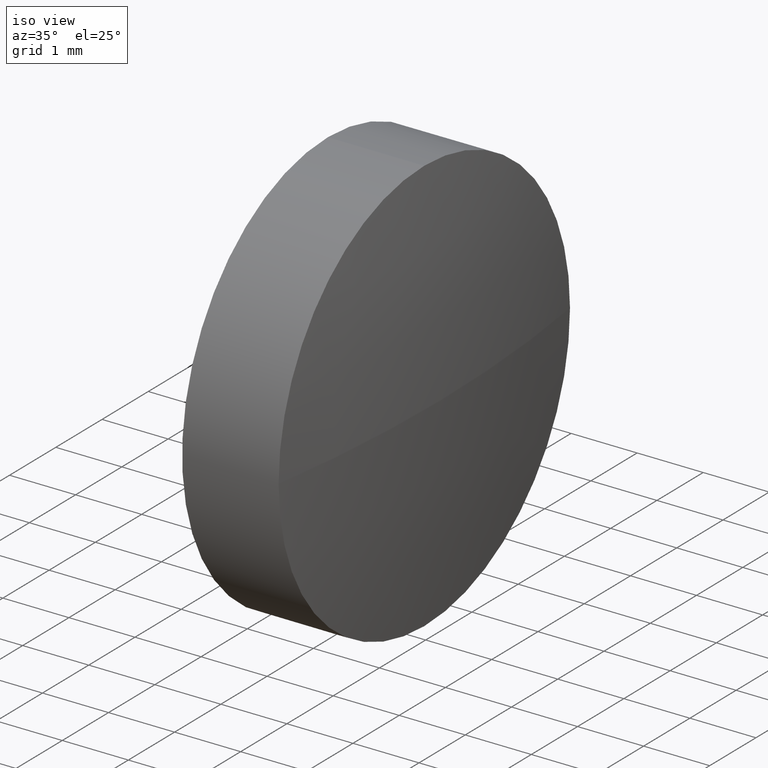
[diagram: clean part render]
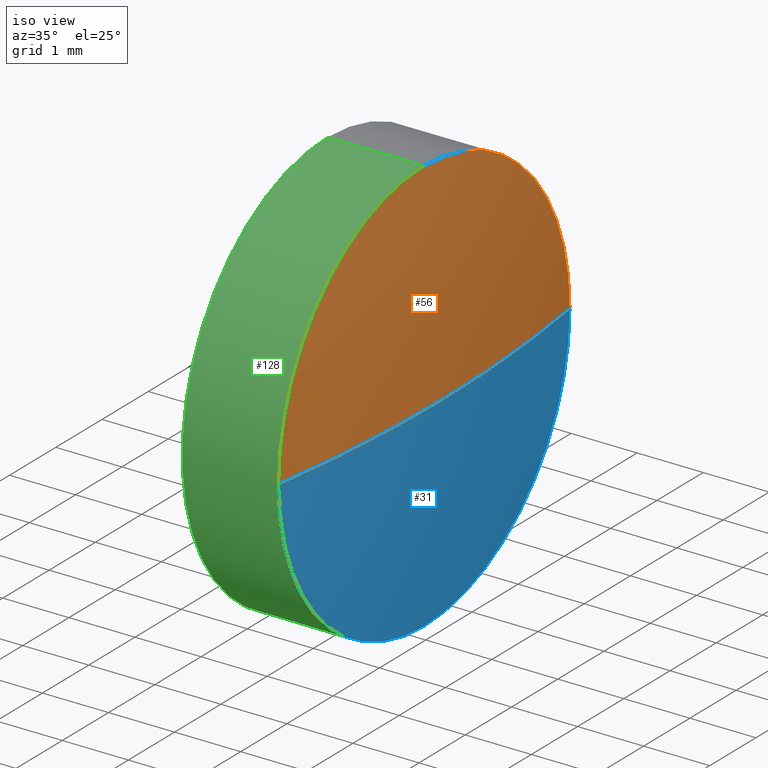
[diagram: same view with three faces highlighted in distinct colors, each labeled with its STEP entity id]
A machine part, iso view with three faces highlighted in distinct colors.
Their STEP definitions:

[orange] entity #56 — the highlighted spherical surface has radius 20.7919 mm.
#1 = DIRECTION ( 'NONE',  ( 0.0000000000000000000, 1.224646799147353200E-016, -1.000000000000000000 ) ) ;
#12 = FACE_OUTER_BOUND ( 'NONE', #65, .T. ) ;
#24 = ORIENTED_EDGE ( 'NONE', *, *, #90, .T. ) ;
#28 = DIRECTION ( 'NONE',  ( -1.000000000000000000, -0.0000000000000000000, -0.0000000000000000000 ) ) ;
#34 = VERTEX_POINT ( 'NONE', #163 ) ;
#36 = CARTESIAN_POINT ( 'NONE',  ( 439.9211293306011600, 24.08364198256748500, 3.149999999999999900 ) ) ;
#38 = ORIENTED_EDGE ( 'NONE', *, *, #41, .F. ) ;
#39 = ORIENTED_EDGE ( 'NONE', *, *, #94, .F. ) ;
#41 = EDGE_CURVE ( 'NONE', #34, #181, #81, .T. ) ;
#44 = EDGE_CURVE ( 'NONE', #132, #155, #122, .T. ) ;
#46 = DIRECTION ( 'NONE',  ( 0.0000000000000000000, 0.0000000000000000000, 1.000000000000000000 ) ) ;
#47 = CARTESIAN_POINT ( 'NONE',  ( 419.3692543306010500, 24.08364198256733200, 0.0000000000000000000 ) ) ;
#48 = ORIENTED_EDGE ( 'NONE', *, *, #44, .F. ) ;
#50 = SPHERICAL_SURFACE ( 'NONE', #126, 20.79187500000012500 ) ;
#56 = ADVANCED_FACE ( 'NONE', ( #12 ), #50, .T. ) ;
#65 = EDGE_LOOP ( 'NONE', ( #38, #24, #48, #39 ) ) ;
#74 = DIRECTION ( 'NONE',  ( -0.0000000000000000000, 0.0000000000000000000, 1.000000000000000000 ) ) ;
#75 = CARTESIAN_POINT ( 'NONE',  ( 439.9211293306011600, 24.08364198256748500, 0.0000000000000000000 ) ) ;
#80 = CARTESIAN_POINT ( 'NONE',  ( 419.3692543306010500, 24.08364198256733200, 0.0000000000000000000 ) ) ;
#81 = CIRCLE ( 'NONE', #169, 20.79187500000012900 ) ;
#90 = EDGE_CURVE ( 'NONE', #34, #155, #110, .T. ) ;
#92 = CIRCLE ( 'NONE', #146, 3.149999999999999900 ) ;
#94 = EDGE_CURVE ( 'NONE', #181, #132, #92, .T. ) ;
#98 = DIRECTION ( 'NONE',  ( 0.0000000000000000000, 1.000000000000000000, 1.224646799147353000E-016 ) ) ;
#99 = DIRECTION ( 'NONE',  ( -1.000000000000000000, -0.0000000000000000000, -0.0000000000000000000 ) ) ;
#106 = DIRECTION ( 'NONE',  ( 0.0000000000000000000, 0.0000000000000000000, 1.000000000000000000 ) ) ;
#107 = DIRECTION ( 'NONE',  ( 1.000000000000000000, 0.0000000000000000000, 0.0000000000000000000 ) ) ;
#110 = CIRCLE ( 'NONE', #112, 20.79187500000012500 ) ;
#112 = AXIS2_PLACEMENT_3D ( 'NONE', #47, #74, #107 ) ;
#117 = DIRECTION ( 'NONE',  ( -0.0000000000000000000, 0.0000000000000000000, -1.000000000000000000 ) ) ;
#118 = CARTESIAN_POINT ( 'NONE',  ( 419.3692543306010500, 24.08364198256733200, 0.0000000000000000000 ) ) ;
#122 = CIRCLE ( 'NONE', #184, 3.149999999999999900 ) ;
#123 = CARTESIAN_POINT ( 'NONE',  ( 439.9211293306011600, 20.93364198256734500, -3.857637417314148900E-016 ) ) ;
#126 = AXIS2_PLACEMENT_3D ( 'NONE', #80, #117, #148 ) ;
#132 = VERTEX_POINT ( 'NONE', #36 ) ;
#136 = CARTESIAN_POINT ( 'NONE',  ( 439.9211293306011600, 27.23364198256747300, 0.0000000000000000000 ) ) ;
#146 = AXIS2_PLACEMENT_3D ( 'NONE', #75, #28, #106 ) ;
#148 = DIRECTION ( 'NONE',  ( 0.0000000000000000000, 1.000000000000000000, 0.0000000000000000000 ) ) ;
#155 = VERTEX_POINT ( 'NONE', #136 ) ;
#160 = CARTESIAN_POINT ( 'NONE',  ( 439.9211293306011600, 24.08364198256748500, 0.0000000000000000000 ) ) ;
#163 = CARTESIAN_POINT ( 'NONE',  ( 440.1611293306011700, 24.08364198256733200, 0.0000000000000000000 ) ) ;
#169 = AXIS2_PLACEMENT_3D ( 'NONE', #118, #1, #98 ) ;
#181 = VERTEX_POINT ( 'NONE', #123 ) ;
#184 = AXIS2_PLACEMENT_3D ( 'NONE', #160, #99, #46 ) ;

[blue] entity #31 — the highlighted spherical surface has radius 20.7919 mm.
#1 = DIRECTION ( 'NONE',  ( 0.0000000000000000000, 1.224646799147353200E-016, -1.000000000000000000 ) ) ;
#6 = DIRECTION ( 'NONE',  ( -0.0000000000000000000, 0.0000000000000000000, -1.000000000000000000 ) ) ;
#8 = CARTESIAN_POINT ( 'NONE',  ( 439.9211293306011600, 24.08364198256748500, 0.0000000000000000000 ) ) ;
#10 = DIRECTION ( 'NONE',  ( -1.000000000000000000, -0.0000000000000000000, -0.0000000000000000000 ) ) ;
#13 = AXIS2_PLACEMENT_3D ( 'NONE', #8, #49, #176 ) ;
#15 = CIRCLE ( 'NONE', #97, 3.149999999999999900 ) ;
#31 = ADVANCED_FACE ( 'NONE', ( #185 ), #159, .T. ) ;
#34 = VERTEX_POINT ( 'NONE', #163 ) ;
#41 = EDGE_CURVE ( 'NONE', #34, #181, #81, .T. ) ;
#45 = CARTESIAN_POINT ( 'NONE',  ( 419.3692543306010500, 24.08364198256733200, 0.0000000000000000000 ) ) ;
#47 = CARTESIAN_POINT ( 'NONE',  ( 419.3692543306010500, 24.08364198256733200, 0.0000000000000000000 ) ) ;
#49 = DIRECTION ( 'NONE',  ( -1.000000000000000000, -0.0000000000000000000, -0.0000000000000000000 ) ) ;
#69 = ORIENTED_EDGE ( 'NONE', *, *, #41, .T. ) ;
#71 = CIRCLE ( 'NONE', #13, 3.149999999999999900 ) ;
#73 = VERTEX_POINT ( 'NONE', #103 ) ;
#74 = DIRECTION ( 'NONE',  ( -0.0000000000000000000, 0.0000000000000000000, 1.000000000000000000 ) ) ;
#81 = CIRCLE ( 'NONE', #169, 20.79187500000012900 ) ;
#83 = EDGE_LOOP ( 'NONE', ( #186, #69, #153, #100 ) ) ;
#84 = EDGE_CURVE ( 'NONE', #73, #181, #15, .T. ) ;
#90 = EDGE_CURVE ( 'NONE', #34, #155, #110, .T. ) ;
#97 = AXIS2_PLACEMENT_3D ( 'NONE', #167, #10, #168 ) ;
#98 = DIRECTION ( 'NONE',  ( 0.0000000000000000000, 1.000000000000000000, 1.224646799147353000E-016 ) ) ;
#100 = ORIENTED_EDGE ( 'NONE', *, *, #140, .F. ) ;
#102 = DIRECTION ( 'NONE',  ( 0.0000000000000000000, 1.000000000000000000, 0.0000000000000000000 ) ) ;
#103 = CARTESIAN_POINT ( 'NONE',  ( 439.9211293306011600, 24.08364198256748500, -3.149999999999999900 ) ) ;
#107 = DIRECTION ( 'NONE',  ( 1.000000000000000000, 0.0000000000000000000, 0.0000000000000000000 ) ) ;
#110 = CIRCLE ( 'NONE', #112, 20.79187500000012500 ) ;
#112 = AXIS2_PLACEMENT_3D ( 'NONE', #47, #74, #107 ) ;
#118 = CARTESIAN_POINT ( 'NONE',  ( 419.3692543306010500, 24.08364198256733200, 0.0000000000000000000 ) ) ;
#123 = CARTESIAN_POINT ( 'NONE',  ( 439.9211293306011600, 20.93364198256734500, -3.857637417314148900E-016 ) ) ;
#136 = CARTESIAN_POINT ( 'NONE',  ( 439.9211293306011600, 27.23364198256747300, 0.0000000000000000000 ) ) ;
#140 = EDGE_CURVE ( 'NONE', #155, #73, #71, .T. ) ;
#153 = ORIENTED_EDGE ( 'NONE', *, *, #84, .F. ) ;
#155 = VERTEX_POINT ( 'NONE', #136 ) ;
#158 = AXIS2_PLACEMENT_3D ( 'NONE', #45, #6, #102 ) ;
#159 = SPHERICAL_SURFACE ( 'NONE', #158, 20.79187500000012500 ) ;
#163 = CARTESIAN_POINT ( 'NONE',  ( 440.1611293306011700, 24.08364198256733200, 0.0000000000000000000 ) ) ;
#167 = CARTESIAN_POINT ( 'NONE',  ( 439.9211293306011600, 24.08364198256748500, 0.0000000000000000000 ) ) ;
#168 = DIRECTION ( 'NONE',  ( 0.0000000000000000000, 0.0000000000000000000, 1.000000000000000000 ) ) ;
#169 = AXIS2_PLACEMENT_3D ( 'NONE', #118, #1, #98 ) ;
#176 = DIRECTION ( 'NONE',  ( 0.0000000000000000000, 0.0000000000000000000, 1.000000000000000000 ) ) ;
#181 = VERTEX_POINT ( 'NONE', #123 ) ;
#185 = FACE_OUTER_BOUND ( 'NONE', #83, .T. ) ;
#186 = ORIENTED_EDGE ( 'NONE', *, *, #90, .F. ) ;

[green] entity #128 — the highlighted cylindrical surface (partial cylindrical patch) has radius 3.15 mm, axis along (-1, -0, -0).
#10 = DIRECTION ( 'NONE',  ( -1.000000000000000000, -0.0000000000000000000, -0.0000000000000000000 ) ) ;
#11 = AXIS2_PLACEMENT_3D ( 'NONE', #87, #109, #35 ) ;
#15 = CIRCLE ( 'NONE', #97, 3.149999999999999900 ) ;
#18 = VERTEX_POINT ( 'NONE', #60 ) ;
#20 = ORIENTED_EDGE ( 'NONE', *, *, #94, .T. ) ;
#22 = CYLINDRICAL_SURFACE ( 'NONE', #23, 3.149999999999999900 ) ;
#23 = AXIS2_PLACEMENT_3D ( 'NONE', #166, #119, #137 ) ;
#25 = FACE_OUTER_BOUND ( 'NONE', #147, .T. ) ;
#27 = CARTESIAN_POINT ( 'NONE',  ( 437.6554189180591800, 24.08364198256748500, 3.149999999999999900 ) ) ;
#28 = DIRECTION ( 'NONE',  ( -1.000000000000000000, -0.0000000000000000000, -0.0000000000000000000 ) ) ;
#35 = DIRECTION ( 'NONE',  ( 0.0000000000000000000, 0.0000000000000000000, 1.000000000000000000 ) ) ;
#36 = CARTESIAN_POINT ( 'NONE',  ( 439.9211293306011600, 24.08364198256748500, 3.149999999999999900 ) ) ;
#57 = VECTOR ( 'NONE', #180, 1000.000000000000000 ) ;
#60 = CARTESIAN_POINT ( 'NONE',  ( 438.4611293306011200, 24.08364198256748500, -3.149999999999999900 ) ) ;
#62 = CARTESIAN_POINT ( 'NONE',  ( 437.6554189180591800, 24.08364198256748500, -3.149999999999999900 ) ) ;
#70 = CIRCLE ( 'NONE', #11, 3.149999999999999900 ) ;
#73 = VERTEX_POINT ( 'NONE', #103 ) ;
#75 = CARTESIAN_POINT ( 'NONE',  ( 439.9211293306011600, 24.08364198256748500, 0.0000000000000000000 ) ) ;
#79 = ORIENTED_EDGE ( 'NONE', *, *, #143, .F. ) ;
#84 = EDGE_CURVE ( 'NONE', #73, #181, #15, .T. ) ;
#85 = DIRECTION ( 'NONE',  ( -1.000000000000000000, -0.0000000000000000000, -0.0000000000000000000 ) ) ;
#87 = CARTESIAN_POINT ( 'NONE',  ( 438.4611293306011200, 24.08364198256748500, 0.0000000000000000000 ) ) ;
#92 = CIRCLE ( 'NONE', #146, 3.149999999999999900 ) ;
#94 = EDGE_CURVE ( 'NONE', #181, #132, #92, .T. ) ;
#96 = LINE ( 'NONE', #62, #57 ) ;
#97 = AXIS2_PLACEMENT_3D ( 'NONE', #167, #10, #168 ) ;
#103 = CARTESIAN_POINT ( 'NONE',  ( 439.9211293306011600, 24.08364198256748500, -3.149999999999999900 ) ) ;
#106 = DIRECTION ( 'NONE',  ( 0.0000000000000000000, 0.0000000000000000000, 1.000000000000000000 ) ) ;
#108 = EDGE_CURVE ( 'NONE', #73, #18, #96, .T. ) ;
#109 = DIRECTION ( 'NONE',  ( -1.000000000000000000, -0.0000000000000000000, -0.0000000000000000000 ) ) ;
#119 = DIRECTION ( 'NONE',  ( -1.000000000000000000, -0.0000000000000000000, -0.0000000000000000000 ) ) ;
#123 = CARTESIAN_POINT ( 'NONE',  ( 439.9211293306011600, 20.93364198256734500, -3.857637417314148900E-016 ) ) ;
#125 = ORIENTED_EDGE ( 'NONE', *, *, #108, .F. ) ;
#128 = ADVANCED_FACE ( 'NONE', ( #25 ), #22, .T. ) ;
#132 = VERTEX_POINT ( 'NONE', #36 ) ;
#137 = DIRECTION ( 'NONE',  ( 0.0000000000000000000, 0.0000000000000000000, 1.000000000000000000 ) ) ;
#143 = EDGE_CURVE ( 'NONE', #18, #173, #70, .T. ) ;
#144 = VECTOR ( 'NONE', #85, 1000.000000000000000 ) ;
#146 = AXIS2_PLACEMENT_3D ( 'NONE', #75, #28, #106 ) ;
#147 = EDGE_LOOP ( 'NONE', ( #125, #149, #20, #170, #79 ) ) ;
#149 = ORIENTED_EDGE ( 'NONE', *, *, #84, .T. ) ;
#150 = LINE ( 'NONE', #27, #144 ) ;
#156 = CARTESIAN_POINT ( 'NONE',  ( 438.4611293306011200, 24.08364198256748500, 3.149999999999999900 ) ) ;
#166 = CARTESIAN_POINT ( 'NONE',  ( 437.6554189180591800, 24.08364198256748500, 0.0000000000000000000 ) ) ;
#167 = CARTESIAN_POINT ( 'NONE',  ( 439.9211293306011600, 24.08364198256748500, 0.0000000000000000000 ) ) ;
#168 = DIRECTION ( 'NONE',  ( 0.0000000000000000000, 0.0000000000000000000, 1.000000000000000000 ) ) ;
#170 = ORIENTED_EDGE ( 'NONE', *, *, #172, .T. ) ;
#172 = EDGE_CURVE ( 'NONE', #132, #173, #150, .T. ) ;
#173 = VERTEX_POINT ( 'NONE', #156 ) ;
#180 = DIRECTION ( 'NONE',  ( -1.000000000000000000, -0.0000000000000000000, -0.0000000000000000000 ) ) ;
#181 = VERTEX_POINT ( 'NONE', #123 ) ;